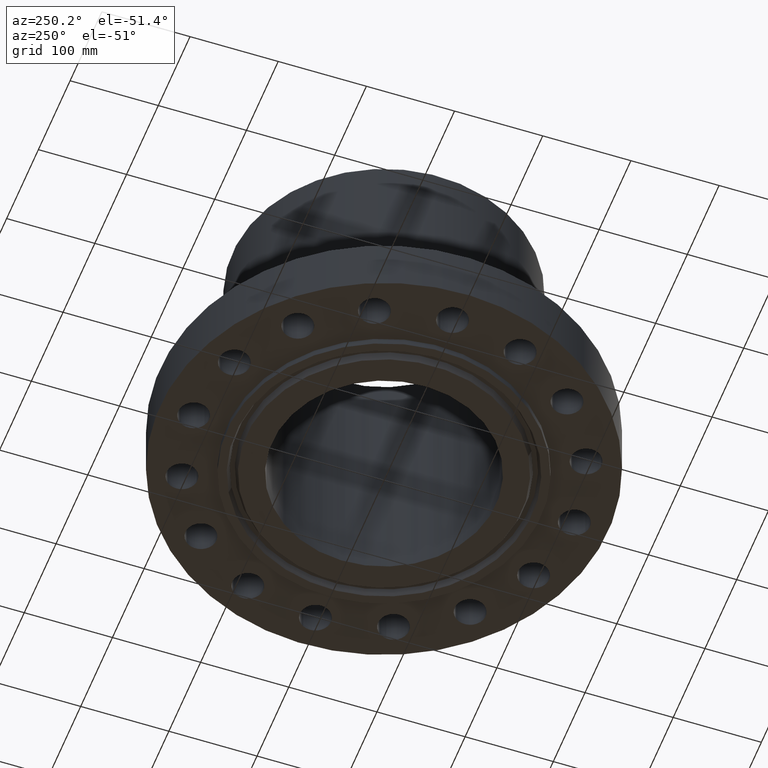
[diagram: clean part render]
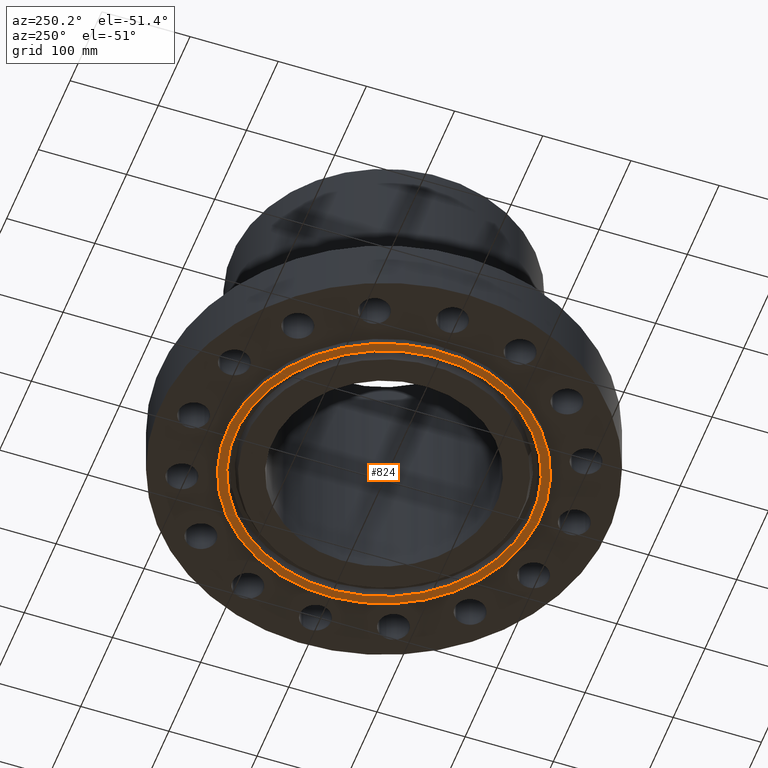
[diagram: same view with one face highlighted and labeled with its STEP entity id]
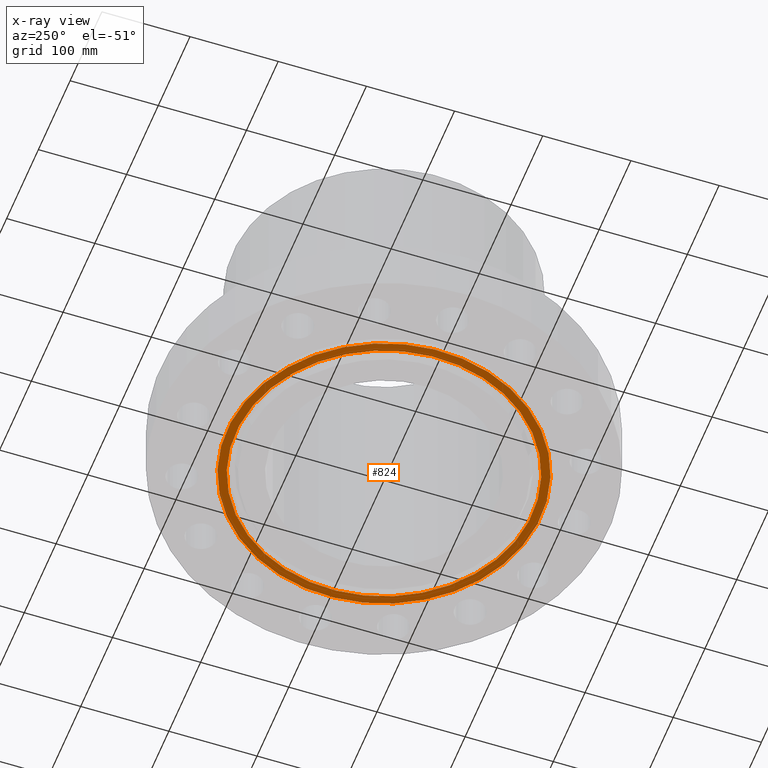
[diagram: x-ray of the same camera — body ghosted, the highlighted face saturated]
A machine part, auxiliary view. The second image highlights one B-rep face of the part: STEP entity #824.
The next image is the same camera in x-ray: the body ghosted, the highlighted face saturated — about 0% of this face is hidden behind the body in this view.
In plain terms, the highlighted planar face has unit normal (0, 0, -1).
Its self-contained STEP definition (entity closure, byte-faithful):
#582=AXIS2_PLACEMENT_3D('Plane Axis2P3D',#579,#580,#581) ;
#773=AXIS2_PLACEMENT_3D('Circle Axis2P3D',#771,#772,$) ;
#792=AXIS2_PLACEMENT_3D('Circle Axis2P3D',#790,#791,$) ;
#804=AXIS2_PLACEMENT_3D('Circle Axis2P3D',#802,#803,$) ;
#813=AXIS2_PLACEMENT_3D('Circle Axis2P3D',#811,#812,$) ;
#579=CARTESIAN_POINT('Axis2P3D Location',(0.,5.00000000002,-0.313000000001)) ;
#768=CARTESIAN_POINT('Vertex',(-3.16876309742,-5.80038194284,-0.313000000001)) ;
#771=CARTESIAN_POINT('Axis2P3D Location',(0.,0.,-0.313000000001)) ;
#775=CARTESIAN_POINT('Vertex',(3.16876309742,5.80038194284,-0.313000000001)) ;
#790=CARTESIAN_POINT('Axis2P3D Location',(0.,0.,-0.313000000001)) ;
#802=CARTESIAN_POINT('Axis2P3D Location',(0.,0.,-0.313000000001)) ;
#806=CARTESIAN_POINT('Vertex',(-3.35597877024,-6.14307793326,-0.313000000001)) ;
#808=CARTESIAN_POINT('Vertex',(3.35597877024,6.14307793326,-0.313000000001)) ;
#811=CARTESIAN_POINT('Axis2P3D Location',(0.,0.,-0.313000000001)) ;
#580=DIRECTION('Axis2P3D Direction',(0.,0.,-0.0393700787402)) ;
#581=DIRECTION('Axis2P3D XDirection',(0.0393700787402,0.,0.)) ;
#772=DIRECTION('Axis2P3D Direction',(0.,0.,-0.0393700787402)) ;
#791=DIRECTION('Axis2P3D Direction',(0.,0.,-0.0393700787402)) ;
#803=DIRECTION('Axis2P3D Direction',(0.,0.,-0.0393700787402)) ;
#812=DIRECTION('Axis2P3D Direction',(0.,0.,-0.0393700787402)) ;
#817=ORIENTED_EDGE('',*,*,#810,.T.) ;
#818=ORIENTED_EDGE('',*,*,#815,.T.) ;
#821=ORIENTED_EDGE('',*,*,#794,.F.) ;
#822=ORIENTED_EDGE('',*,*,#777,.F.) ;
#823=FACE_BOUND('',#820,.T.) ;
#824=ADVANCED_FACE('PartBody',(#819,#823),#583,.T.) ;
#774=CIRCLE('generated circle',#773,6.60950000003) ;
#793=CIRCLE('generated circle',#792,6.60950000003) ;
#805=CIRCLE('generated circle',#804,7.00000000003) ;
#814=CIRCLE('generated circle',#813,7.00000000003) ;
#777=EDGE_CURVE('',#769,#776,#774,.T.) ;
#794=EDGE_CURVE('',#776,#769,#793,.T.) ;
#810=EDGE_CURVE('',#807,#809,#805,.T.) ;
#815=EDGE_CURVE('',#809,#807,#814,.T.) ;
#816=EDGE_LOOP('',(#817,#818)) ;
#820=EDGE_LOOP('',(#821,#822)) ;
#819=FACE_OUTER_BOUND('',#816,.T.) ;
#583=PLANE('',#582) ;
#769=VERTEX_POINT('',#768) ;
#776=VERTEX_POINT('',#775) ;
#807=VERTEX_POINT('',#806) ;
#809=VERTEX_POINT('',#808) ;